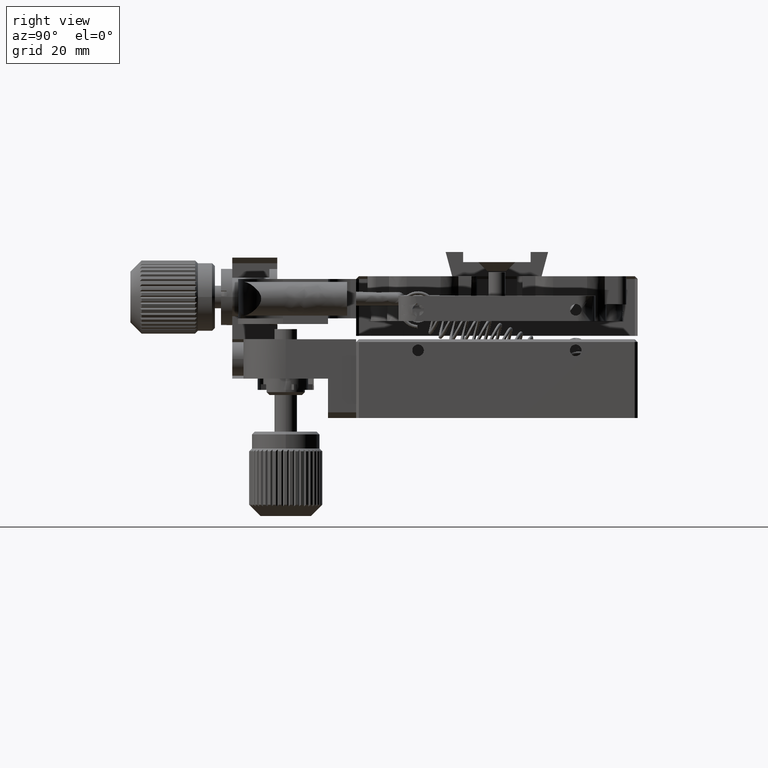
[diagram: clean part render]
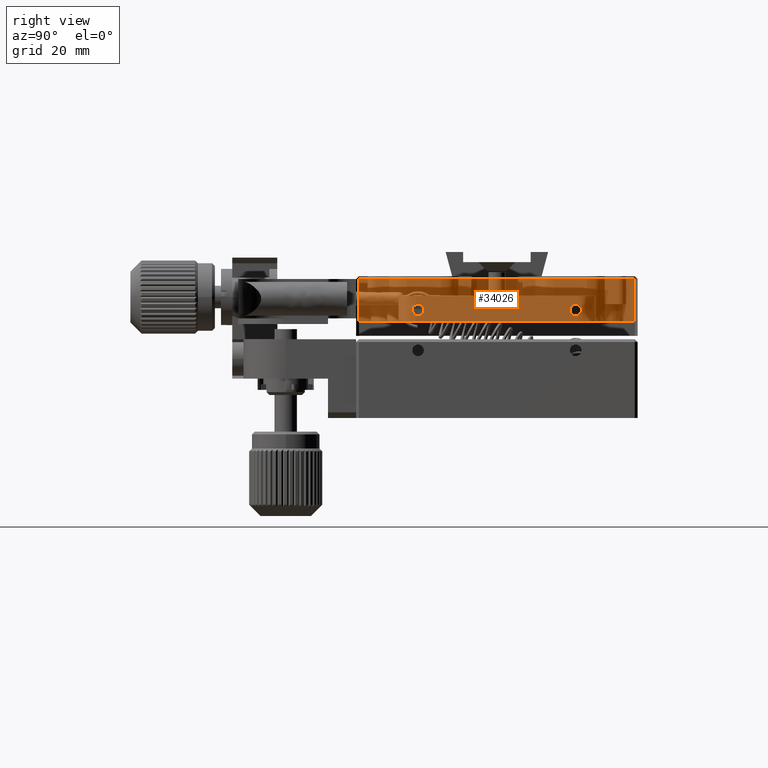
[diagram: same view with one face highlighted and labeled with its STEP entity id]
A machine part, right view. The second image highlights one B-rep face of the part: STEP entity #34026.
In plain terms, the highlighted face is a freeform B-spline surface patch.
Its self-contained STEP definition (entity closure, byte-faithful):
#106 = CARTESIAN_POINT ( 'NONE',  ( 47.75667729595609501, -30.93494817087820081, 9.003960327354061377 ) ) ;
#636 = CARTESIAN_POINT ( 'NONE',  ( 47.75667729595609501, 7.565051829121860472, 12.02896032735412035 ) ) ;
#956 = CARTESIAN_POINT ( 'NONE',  ( 47.75667729595608790, -20.07405880233282147, 10.04444191471606729 ) ) ;
#1130 = CARTESIAN_POINT ( 'NONE',  ( 47.75667729595610211, -20.04252669125482811, 11.95099608665875657 ) ) ;
#1309 = CARTESIAN_POINT ( 'NONE',  ( 47.75667729595609501, -20.43494817087810134, 12.14146032735403935 ) ) ;
#1320 = B_SPLINE_CURVE_WITH_KNOTS ( 'NONE', 1,
 ( #13165, #21828 ),
 .UNSPECIFIED., .F., .F.,
 ( 2, 2 ),
 ( 0.000000000000000000, 1.000000000000000000 ),
 .UNSPECIFIED. ) ;
#1400 = VERTEX_POINT ( 'NONE', #26051 ) ;
#1490 = CARTESIAN_POINT ( 'NONE',  ( 47.75667729595609501, -19.94574530696145587, 11.90602350874385351 ) ) ;
#2068 = CARTESIAN_POINT ( 'NONE',  ( 47.75667729595609501, 18.06505182912190222, 16.50396032735410046 ) ) ;
#2252 = CARTESIAN_POINT ( 'NONE',  ( 47.75667729595609501, -21.37453284412622523, 11.41398444064661888 ) ) ;
#2259 = CARTESIAN_POINT ( 'NONE',  ( 47.75667729595609501, 7.565051829121860472, 12.02896032735412035 ) ) ;
#2606 = CARTESIAN_POINT ( 'NONE',  ( 47.75667729595608790, -21.41012660889786545, 10.68777391986565384 ) ) ;
#4064 = CARTESIAN_POINT ( 'NONE',  ( 47.75667729595610211, -20.30441200458956885, 12.02896032735409726 ) ) ;
#4401 = EDGE_CURVE ( 'NONE', #34094, #10981, #13775, .T. ) ;
#4426 = CARTESIAN_POINT ( 'NONE',  ( 47.75667729595610922, -20.02492406149390547, 11.94354500451804668 ) ) ;
#4632 = CARTESIAN_POINT ( 'NONE',  ( 47.75667729595610922, -21.10986019473749664, 10.22924670262824165 ) ) ;
#4996 = CARTESIAN_POINT ( 'NONE',  ( 47.75667729595608080, -20.70507730400669288, 11.99372648780907902 ) ) ;
#5197 = EDGE_CURVE ( 'NONE', #21100, #24946, #7249, .T. ) ;
#5271 = FACE_OUTER_BOUND ( 'NONE', #26266, .T. ) ;
#6830 = CARTESIAN_POINT ( 'NONE',  ( 47.75667729595608080, -19.45976973285486622, 11.32014673485163669 ) ) ;
#6951 = VERTEX_POINT ( 'NONE', #16310 ) ;
#7205 = CARTESIAN_POINT ( 'NONE',  ( 47.75667729595610922, -19.99295097960369461, 11.92898219674685656 ) ) ;
#7249 = B_SPLINE_CURVE_WITH_KNOTS ( 'NONE', 1,
 ( #8764, #34191 ),
 .UNSPECIFIED., .F., .F.,
 ( 2, 2 ),
 ( 0.000000000000000000, 1.000000000000000000 ),
 .UNSPECIFIED. ) ;
#7409 = CARTESIAN_POINT ( 'NONE',  ( 47.75667729595610922, -21.25947747530814524, 10.37903422465699244 ) ) ;
#7780 = CARTESIAN_POINT ( 'NONE',  ( 47.75667729595608790, -20.59599133536292825, 12.01996445342770947 ) ) ;
#7968 = CARTESIAN_POINT ( 'NONE',  ( 47.75667729595609501, -21.38199304128465883, 11.39635882686717494 ) ) ;
#8242 = CARTESIAN_POINT ( 'NONE',  ( 47.75667729595609501, -30.93494817087820081, 16.50396032735410046 ) ) ;
#8764 = CARTESIAN_POINT ( 'NONE',  ( 47.75667729595609501, 18.06505182912190222, 9.003960327354061377 ) ) ;
#9726 = EDGE_CURVE ( 'NONE', #6951, #1400, #29595, .T. ) ;
#9983 = CARTESIAN_POINT ( 'NONE',  ( 47.75667729595611632, -19.44513445289198472, 11.27396914264102001 ) ) ;
#10109 =( BOUNDED_CURVE ( )  B_SPLINE_CURVE ( 3, ( #12993, #21291, #35480, #10226 ),
 .UNSPECIFIED., .F., .F. ) 
 B_SPLINE_CURVE_WITH_KNOTS ( ( 4, 4 ),
 ( 0.000000000000000000, 1.000000000000000000 ),
 .UNSPECIFIED. ) 
 CURVE ( )  GEOMETRIC_REPRESENTATION_ITEM ( )  RATIONAL_B_SPLINE_CURVE ( ( 1.000000000000000000, 0.3333333333333329818, 0.3333333333333329818, 1.000000000000000000 ) ) 
 REPRESENTATION_ITEM ( '' )  );
#10226 = CARTESIAN_POINT ( 'NONE',  ( 47.75667729595609501, 7.565051829121860472, 9.978960327354100102 ) ) ;
#10751 = CARTESIAN_POINT ( 'NONE',  ( 47.75667729595607369, -21.43588628492690162, 11.26044602695670349 ) ) ;
#10899 = ORIENTED_EDGE ( 'NONE', *, *, #34283, .F. ) ;
#10981 = VERTEX_POINT ( 'NONE', #2259 ) ;
#11110 = CARTESIAN_POINT ( 'NONE',  ( 47.75667729595610922, -21.35997003322230725, 11.44595752566359614 ) ) ;
#12216 = CARTESIAN_POINT ( 'NONE',  ( 47.75667729595608080, -19.66023455450324420, 10.32904829514860801 ) ) ;
#12251 = CARTESIAN_POINT ( 'NONE',  ( 47.75667729595610211, 5.515051829121874860, 9.978960327354085891 ) ) ;
#12659 = B_SPLINE_SURFACE_WITH_KNOTS ( 'NONE', 1, 1, ( 
 ( #30534, #8242 ),
 ( #24664, #106 ) ),
 .UNSPECIFIED., .F., .F., .F.,
 ( 2, 2 ),
 ( 2, 2 ),
 ( 0.000000000000000000, 1.000000000000000000 ),
 ( 0.000000000000000000, 1.000000000000000000 ),
 .UNSPECIFIED. ) ;
#12754 = CARTESIAN_POINT ( 'NONE',  ( 47.75667729595611632, -20.11868441619040482, 10.02881246202934484 ) ) ;
#12934 = CARTESIAN_POINT ( 'NONE',  ( 47.75667729595610211, -20.36987329668648172, 9.978960327354064574 ) ) ;
#12993 = CARTESIAN_POINT ( 'NONE',  ( 47.75667729595609501, 7.565051829121860472, 12.02896032735412035 ) ) ;
#13165 = CARTESIAN_POINT ( 'NONE',  ( 47.75667729595609501, -30.93494817087820081, 9.003960327354061377 ) ) ;
#13327 = CARTESIAN_POINT ( 'NONE',  ( 47.75667729595611632, -20.94350691821864530, 11.90511010355961830 ) ) ;
#13335 = EDGE_LOOP ( 'NONE', ( #26503, #10899 ) ) ;
#13391 = ORIENTED_EDGE ( 'NONE', *, *, #9726, .T. ) ;
#13421 = CARTESIAN_POINT ( 'NONE',  ( 47.75667729595609501, 7.565051829121860472, 9.978960327354100102 ) ) ;
#13594 = ORIENTED_EDGE ( 'NONE', *, *, #5197, .T. ) ;
#13701 = CARTESIAN_POINT ( 'NONE',  ( 47.75667729595608790, -21.02901995291791692, 10.16326875238696026 ) ) ;
#13775 =( BOUNDED_CURVE ( )  B_SPLINE_CURVE ( 3, ( #25898, #12251, #34544, #636 ),
 .UNSPECIFIED., .F., .F. ) 
 B_SPLINE_CURVE_WITH_KNOTS ( ( 4, 4 ),
 ( 3.141592653589795336, 6.283185307179590673 ),
 .UNSPECIFIED. ) 
 CURVE ( )  GEOMETRIC_REPRESENTATION_ITEM ( )  RATIONAL_B_SPLINE_CURVE ( ( 0.9999999999999997780, 0.3333333333333329818, 0.3333333333333331483, 1.000000000000000000 ) ) 
 REPRESENTATION_ITEM ( '' )  );
#13880 = CARTESIAN_POINT ( 'NONE',  ( 47.75667729595608790, -21.39446658351798192, 10.64307095881165566 ) ) ;
#15351 = CARTESIAN_POINT ( 'NONE',  ( 47.75667729595611632, -19.59425661052501511, 10.40988853070869702 ) ) ;
#15529 = CARTESIAN_POINT ( 'NONE',  ( 47.75667729595609501, -20.43494817087809068, 9.978960327354066351 ) ) ;
#15908 = CARTESIAN_POINT ( 'NONE',  ( 47.75667729595610922, -20.79583753942417701, 11.96347873999093103 ) ) ;
#16098 = CARTESIAN_POINT ( 'NONE',  ( 47.75667729595609501, -21.45987570226758123, 11.13392673422736046 ) ) ;
#16281 = CARTESIAN_POINT ( 'NONE',  ( 47.75667729595609501, -20.78183133818035344, 11.96861300643125503 ) ) ;
#16310 = CARTESIAN_POINT ( 'NONE',  ( 47.75667729595609501, -20.43494817087810134, 12.14146032735403935 ) ) ;
#16708 = EDGE_CURVE ( 'NONE', #36008, #23373, #24403, .T. ) ;
#17923 = CARTESIAN_POINT ( 'NONE',  ( 47.75667729595608790, -19.47542975823595057, 11.36484969589632321 ) ) ;
#18110 = CARTESIAN_POINT ( 'NONE',  ( 47.75667729595610211, -19.61041886647542043, 11.62888643005990197 ) ) ;
#18288 = CARTESIAN_POINT ( 'NONE',  ( 47.75667729595610922, -19.48790330047063435, 10.61156182784022661 ) ) ;
#18682 = CARTESIAN_POINT ( 'NONE',  ( 47.75667729595609501, -20.92415103477680915, 10.10189714595837351 ) ) ;
#18693 = CARTESIAN_POINT ( 'NONE',  ( 47.75667729595609501, 18.06505182912190222, 16.50396032735410046 ) ) ;
#18892 = ORIENTED_EDGE ( 'NONE', *, *, #20593, .T. ) ;
#19233 = CARTESIAN_POINT ( 'NONE',  ( 47.75667729595608790, -21.39961783478594981, 10.65712013071469322 ) ) ;
#19411 = CARTESIAN_POINT ( 'NONE',  ( 47.75667729595610211, -21.20966178724555107, 11.67887235956509429 ) ) ;
#20593 = EDGE_CURVE ( 'NONE', #23373, #21100, #34646, .T. ) ;
#20817 = CARTESIAN_POINT ( 'NONE',  ( 47.75667729595609501, 18.06505182912190222, 9.003960327354061377 ) ) ;
#20870 = CARTESIAN_POINT ( 'NONE',  ( 47.75667729595609501, -20.08806500357256652, 10.03930764827677002 ) ) ;
#21100 = VERTEX_POINT ( 'NONE', #20817 ) ;
#21103 = EDGE_LOOP ( 'NONE', ( #13391, #25999 ) ) ;
#21231 = CARTESIAN_POINT ( 'NONE',  ( 47.75667729595609501, -19.76003614700501387, 11.77867395207534074 ) ) ;
#21290 = CARTESIAN_POINT ( 'NONE',  ( 47.75667729595609501, 18.06505182912190222, 16.50396032735410046 ) ) ;
#21291 = CARTESIAN_POINT ( 'NONE',  ( 47.75667729595623001, 9.615051829121846083, 12.02896032735409371 ) ) ;
#21508 = ORIENTED_EDGE ( 'NONE', *, *, #16708, .T. ) ;
#21621 = CARTESIAN_POINT ( 'NONE',  ( 47.75667729595609501, -20.43494817087809068, 12.02896032735409726 ) ) ;
#21828 = CARTESIAN_POINT ( 'NONE',  ( 47.75667729595609501, -30.93494817087820081, 16.50396032735410046 ) ) ;
#22174 = CARTESIAN_POINT ( 'NONE',  ( 47.75667729595609501, 18.06505182912190222, 9.003960327354061377 ) ) ;
#22249 = FACE_BOUND ( 'NONE', #13335, .T. ) ;
#22844 = CARTESIAN_POINT ( 'NONE',  ( 47.75667729595611632, -20.69125002960498350, 10.00294932449106433 ) ) ;
#23373 = VERTEX_POINT ( 'NONE', #21290 ) ;
#23443 = CARTESIAN_POINT ( 'NONE',  ( 47.75667729595608790, -19.53288500044294551, 10.51475745250116489 ) ) ;
#23621 = CARTESIAN_POINT ( 'NONE',  ( 47.75667729595610211, -20.27390500638018267, 9.987956201280432822 ) ) ;
#23800 = CARTESIAN_POINT ( 'NONE',  ( 47.75667729595609501, -19.81002205147970585, 10.17943103961592044 ) ) ;
#23987 = CARTESIAN_POINT ( 'NONE',  ( 47.75667729595610211, -19.49536349762651710, 10.59393621406395702 ) ) ;
#24175 = CARTESIAN_POINT ( 'NONE',  ( 47.75667729595608790, -19.50992630852757870, 10.56196312904914869 ) ) ;
#24403 = B_SPLINE_CURVE_WITH_KNOTS ( 'NONE', 1,
 ( #35998, #2068 ),
 .UNSPECIFIED., .F., .F.,
 ( 2, 2 ),
 ( 0.000000000000000000, 1.000000000000000000 ),
 .UNSPECIFIED. ) ;
#24664 = CARTESIAN_POINT ( 'NONE',  ( 47.75667729595609501, 18.06505182912190222, 9.003960327354061377 ) ) ;
#24756 = CARTESIAN_POINT ( 'NONE',  ( 47.75667729595607369, -21.42476188885880717, 10.73395151208144860 ) ) ;
#24946 = VERTEX_POINT ( 'NONE', #34306 ) ;
#25114 = CARTESIAN_POINT ( 'NONE',  ( 47.75667729595609501, -20.82736965050082034, 10.05692456804930579 ) ) ;
#25898 = CARTESIAN_POINT ( 'NONE',  ( 47.75667729595609501, 7.565051829121860472, 9.978960327354100102 ) ) ;
#25999 = ORIENTED_EDGE ( 'NONE', *, *, #35584, .T. ) ;
#26051 = CARTESIAN_POINT ( 'NONE',  ( 47.75667729595609501, -20.43494817087810134, 9.866460327354019455 ) ) ;
#26266 = EDGE_LOOP ( 'NONE', ( #33101, #21508, #18892, #13594 ) ) ;
#26503 = ORIENTED_EDGE ( 'NONE', *, *, #4401, .F. ) ;
#26565 = CARTESIAN_POINT ( 'NONE',  ( 47.75667729595609501, -19.92638942353369558, 10.10281055115638615 ) ) ;
#27147 = CARTESIAN_POINT ( 'NONE',  ( 47.75667729595609501, -20.43494817087810134, 9.866460327354019455 ) ) ;
#27333 = CARTESIAN_POINT ( 'NONE',  ( 47.75667729595609501, -20.50002304506220696, 12.02896032735409726 ) ) ;
#27521 = CARTESIAN_POINT ( 'NONE',  ( 47.75667729595610922, -21.45101570698594884, 10.84307758667719312 ) ) ;
#27786 = FACE_BOUND ( 'NONE', #21103, .T. ) ;
#27881 = CARTESIAN_POINT ( 'NONE',  ( 47.75667729595611632, -21.45998440518336992, 10.93897712391732036 ) ) ;
#29331 = CARTESIAN_POINT ( 'NONE',  ( 47.75667729595609501, -20.17864631215592652, 12.00497133021706908 ) ) ;
#29468 = B_SPLINE_CURVE_WITH_KNOTS ( 'NONE', 3,
 ( #15529, #12934, #23621, #32092, #12754, #20870, #956, #26565, #23800, #12216, #15351, #23443, #24175, #23987, #18288, #35048, #35231, #33154, #29512, #9983, #6830, #35930, #17923, #34686, #18110, #21231, #29698, #1490, #7205, #4426, #1130, #29331, #4064, #1309 ),
 .UNSPECIFIED., .F., .F.,
 ( 4, 1, 1, 2, 2, 2, 1, 1, 2, 2, 2, 1, 1, 2, 2, 2, 1, 1, 2, 2, 4 ),
 ( 0.000000000000000000, 0.06249999999999225619, 0.09374999999999020228, 0.1093749999999873157, 0.1249999999999844430, 0.2499999999999756306, 0.3124999999999701350, 0.3437499999999659162, 0.3593749999999651945, 0.3749999999999644729, 0.4999999999999614753, 0.5624999999999599209, 0.5937499999999599209, 0.6093749999999612532, 0.6249999999999624745, 0.7499999999999695799, 0.8124999999999741318, 0.8437499999999751310, 0.8593749999999770184, 0.8749999999999787947, 1.000000000000000000 ),
 .UNSPECIFIED. ) ;
#29512 = CARTESIAN_POINT ( 'NONE',  ( 47.75667729595609501, -19.41888063476302406, 11.16484306805011606 ) ) ;
#29595 = B_SPLINE_CURVE_WITH_KNOTS ( 'NONE', 3,
 ( #21621, #27333, #7780, #4996, #30088, #16281, #15908, #13327, #33215, #19411, #32843, #30630, #11110, #2252, #7968, #10751, #16098, #27881, #27521, #24756, #2606, #19233, #13880, #30447, #7409, #4632, #13701, #18682, #36168, #36343, #25114, #22844, #29897, #27147 ),
 .UNSPECIFIED., .F., .F.,
 ( 4, 1, 1, 2, 2, 2, 1, 1, 2, 2, 2, 1, 1, 2, 2, 2, 1, 1, 2, 2, 4 ),
 ( 0.000000000000000000, 0.06250000000000588418, 0.09375000000001065814, 0.1093750000000132810, 0.1250000000000159039, 0.2500000000000236478, 0.3125000000000269784, 0.3437500000000286438, 0.3593750000000294764, 0.3750000000000303646, 0.5000000000000296430, 0.5625000000000284217, 0.5937500000000283107, 0.6093750000000283107, 0.6250000000000281997, 0.7500000000000234257, 0.8125000000000204281, 0.8437500000000175415, 0.8593750000000158762, 0.8750000000000140998, 1.000000000000000000 ),
 .UNSPECIFIED. ) ;
#29698 = CARTESIAN_POINT ( 'NONE',  ( 47.75667729595609501, -19.84087638881433335, 11.84465190231330389 ) ) ;
#29897 = CARTESIAN_POINT ( 'NONE',  ( 47.75667729595612343, -20.56548433717133761, 9.978960327354069904 ) ) ;
#29971 = CARTESIAN_POINT ( 'NONE',  ( 47.75667729595609501, -30.93494817087820081, 16.50396032735410046 ) ) ;
#30088 = CARTESIAN_POINT ( 'NONE',  ( 47.75667729595610211, -20.75121192555966587, 11.97910819267870863 ) ) ;
#30447 = CARTESIAN_POINT ( 'NONE',  ( 47.75667729595610211, -21.33609794706036666, 10.49540157998461787 ) ) ;
#30534 = CARTESIAN_POINT ( 'NONE',  ( 47.75667729595609501, 18.06505182912190222, 16.50396032735410046 ) ) ;
#30630 = CARTESIAN_POINT ( 'NONE',  ( 47.75667729595610922, -21.33701134130337707, 11.49316320221429244 ) ) ;
#32092 = CARTESIAN_POINT ( 'NONE',  ( 47.75667729595610922, -20.16481903773978956, 10.01419416689899577 ) ) ;
#32843 = CARTESIAN_POINT ( 'NONE',  ( 47.75667729595610922, -21.27563973121797503, 11.59803212400930050 ) ) ;
#33101 = ORIENTED_EDGE ( 'NONE', *, *, #35270, .T. ) ;
#33154 = CARTESIAN_POINT ( 'NONE',  ( 47.75667729595610211, -19.40991193656871516, 11.06894353080168791 ) ) ;
#33215 = CARTESIAN_POINT ( 'NONE',  ( 47.75667729595608790, -21.05987429029217850, 11.82848961508058139 ) ) ;
#34026 = ADVANCED_FACE ( 'NONE', ( #22249, #27786, #5271 ), #12659, .T. ) ;
#34094 = VERTEX_POINT ( 'NONE', #13421 ) ;
#34191 = CARTESIAN_POINT ( 'NONE',  ( 47.75667729595609501, -30.93494817087820081, 9.003960327354061377 ) ) ;
#34283 = EDGE_CURVE ( 'NONE', #10981, #34094, #10109, .T. ) ;
#34306 = CARTESIAN_POINT ( 'NONE',  ( 47.75667729595609501, -30.93494817087820081, 9.003960327354061377 ) ) ;
#34544 = CARTESIAN_POINT ( 'NONE',  ( 47.75667729595610922, 5.515051829121877525, 12.02896032735409193 ) ) ;
#34646 = B_SPLINE_CURVE_WITH_KNOTS ( 'NONE', 1,
 ( #18693, #22174 ),
 .UNSPECIFIED., .F., .F.,
 ( 2, 2 ),
 ( 0.000000000000000000, 1.000000000000000000 ),
 .UNSPECIFIED. ) ;
#34686 = CARTESIAN_POINT ( 'NONE',  ( 47.75667729595609501, -19.53379839471427104, 11.51251907472318692 ) ) ;
#35048 = CARTESIAN_POINT ( 'NONE',  ( 47.75667729595610211, -19.43401005683772809, 10.74747462775502882 ) ) ;
#35231 = CARTESIAN_POINT ( 'NONE',  ( 47.75667729595609501, -19.41002063949696677, 10.87399392045844770 ) ) ;
#35270 = EDGE_CURVE ( 'NONE', #24946, #36008, #1320, .T. ) ;
#35480 = CARTESIAN_POINT ( 'NONE',  ( 47.75667729595623001, 9.615051829121846083, 9.978960327354085891 ) ) ;
#35584 = EDGE_CURVE ( 'NONE', #1400, #6951, #29468, .T. ) ;
#35930 = CARTESIAN_POINT ( 'NONE',  ( 47.75667729595609501, -19.47027850696833084, 11.35080052399844952 ) ) ;
#35998 = CARTESIAN_POINT ( 'NONE',  ( 47.75667729595609501, -30.93494817087820081, 16.50396032735410046 ) ) ;
#36008 = VERTEX_POINT ( 'NONE', #29971 ) ;
#36168 = CARTESIAN_POINT ( 'NONE',  ( 47.75667729595610211, -20.87694536214098306, 10.07893845795745946 ) ) ;
#36343 = CARTESIAN_POINT ( 'NONE',  ( 47.75667729595610211, -20.84497228025591298, 10.06437565018793912 ) ) ;